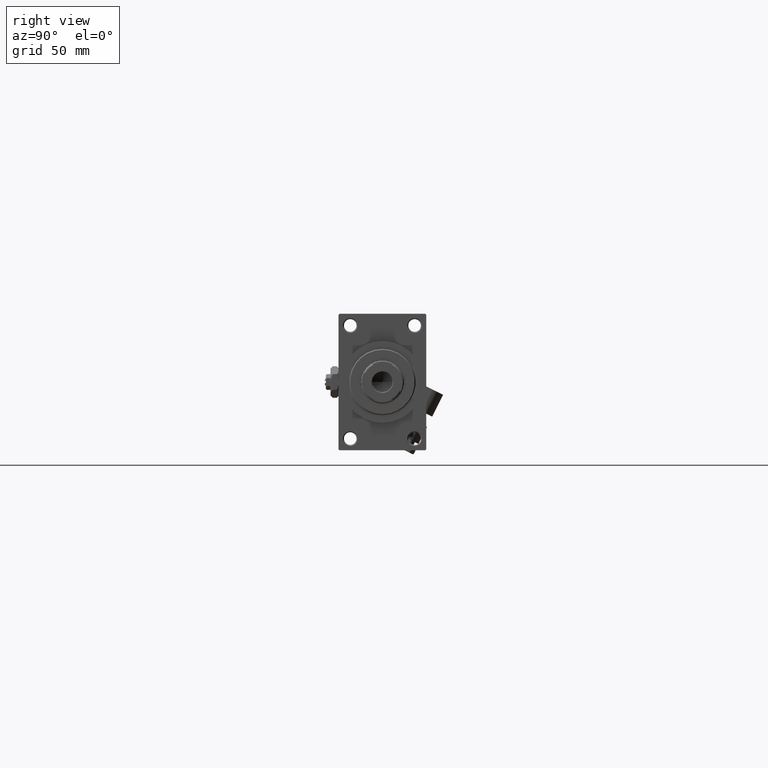
[diagram: clean part render]
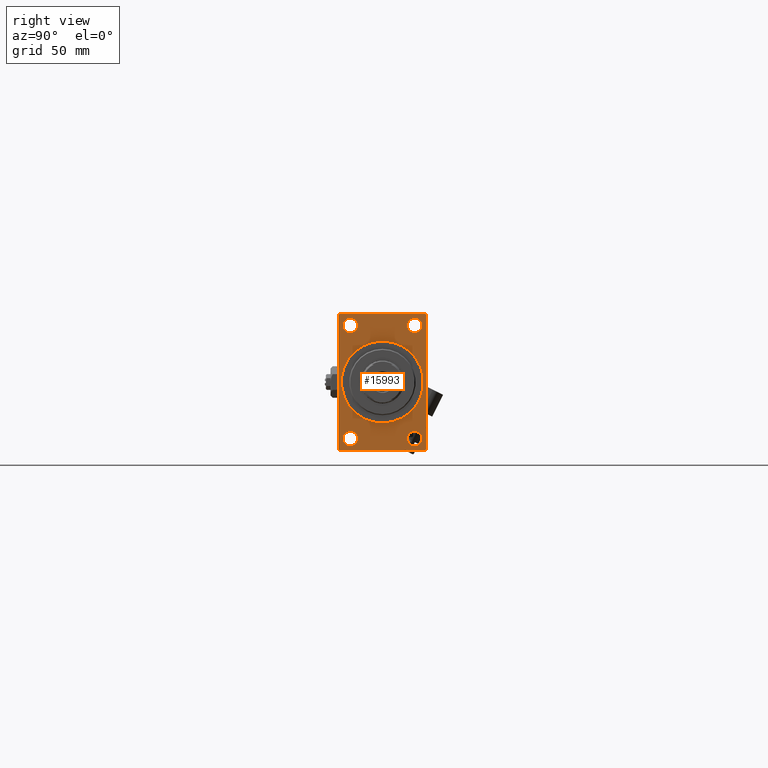
[diagram: same view with one face highlighted and labeled with its STEP entity id]
A machine part, right view. The second image highlights one B-rep face of the part: STEP entity #15993.
In plain terms, the highlighted planar face has unit normal (-1, 0, 0).
Its self-contained STEP definition (entity closure, byte-faithful):
#41 = AXIS2_PLACEMENT_3D ( 'NONE', #14503, #25648, #5653 ) ;
#361 = CARTESIAN_POINT ( 'NONE',  ( 318.0000000000000000, -16.50000000000000000, -25.25000000000001776 ) ) ;
#853 = CARTESIAN_POINT ( 'NONE',  ( 318.0000000000000000, 16.50000000000000000, 25.24999999999994671 ) ) ;
#1430 = CARTESIAN_POINT ( 'NONE',  ( 318.0000000000000000, -22.50000000000000355, 34.50000000000000000 ) ) ;
#1906 = VERTEX_POINT ( 'NONE', #20169 ) ;
#2565 = FACE_BOUND ( 'NONE', #6423, .T. ) ;
#2889 = DIRECTION ( 'NONE',  ( 0.000000000000000000, -1.000000000000000000, 0.000000000000000000 ) ) ;
#3089 = DIRECTION ( 'NONE',  ( -1.000000000000000000, -0.000000000000000000, -0.000000000000000000 ) ) ;
#3107 = AXIS2_PLACEMENT_3D ( 'NONE', #10970, #3089, #44876 ) ;
#3402 = EDGE_CURVE ( 'NONE', #31850, #42200, #6403, .T. ) ;
#3495 = CARTESIAN_POINT ( 'NONE',  ( 318.0000000000000000, 0.000000000000000000, 0.000000000000000000 ) ) ;
#3497 = ORIENTED_EDGE ( 'NONE', *, *, #30233, .F. ) ;
#3504 = CARTESIAN_POINT ( 'NONE',  ( 318.0000000000000000, -16.50000000000000000, -32.74999999999997158 ) ) ;
#3523 = VERTEX_POINT ( 'NONE', #29397 ) ;
#3609 = EDGE_CURVE ( 'NONE', #22597, #42264, #7107, .T. ) ;
#3708 = ORIENTED_EDGE ( 'NONE', *, *, #3402, .T. ) ;
#4029 = DIRECTION ( 'NONE',  ( -1.000000000000000000, -0.000000000000000000, -0.000000000000000000 ) ) ;
#4469 = VERTEX_POINT ( 'NONE', #1430 ) ;
#4523 = ORIENTED_EDGE ( 'NONE', *, *, #25827, .T. ) ;
#4896 = EDGE_CURVE ( 'NONE', #27595, #9261, #43670, .T. ) ;
#5458 = VERTEX_POINT ( 'NONE', #38633 ) ;
#5653 = DIRECTION ( 'NONE',  ( 0.000000000000000000, 0.000000000000000000, 1.000000000000000000 ) ) ;
#5707 = CARTESIAN_POINT ( 'NONE',  ( 318.0000000000000000, 22.00000000000002132, 35.00000000000000000 ) ) ;
#6042 = CARTESIAN_POINT ( 'NONE',  ( 318.0000000000000000, -22.50000000000000355, 34.50000000000000000 ) ) ;
#6403 = CIRCLE ( 'NONE', #20985, 3.750000000000055511 ) ;
#6423 = EDGE_LOOP ( 'NONE', ( #28550, #20867 ) ) ;
#6527 = CARTESIAN_POINT ( 'NONE',  ( 318.0000000000000000, 0.000000000000000000, 0.000000000000000000 ) ) ;
#6619 = PLANE ( 'NONE',  #24573 ) ;
#6992 = DIRECTION ( 'NONE',  ( -0.000000000000000000, 0.7071067811865474617, 0.7071067811865474617 ) ) ;
#7107 = LINE ( 'NONE', #34440, #12131 ) ;
#7348 = VERTEX_POINT ( 'NONE', #35332 ) ;
#7367 = CARTESIAN_POINT ( 'NONE',  ( 318.0000000000000000, -16.50000000000000000, 32.75000000000006395 ) ) ;
#7765 = VECTOR ( 'NONE', #2889, 1000.000000000000000 ) ;
#7939 = DIRECTION ( 'NONE',  ( -1.000000000000000000, -0.000000000000000000, -0.000000000000000000 ) ) ;
#8239 = DIRECTION ( 'NONE',  ( 0.000000000000000000, -1.000000000000000000, 0.000000000000000000 ) ) ;
#8307 = CARTESIAN_POINT ( 'NONE',  ( 318.0000000000000000, -16.50000000000000000, 29.00000000000000711 ) ) ;
#8360 = EDGE_LOOP ( 'NONE', ( #12945, #13839, #15112, #36370, #22484, #46509, #20950, #10319 ) ) ;
#8850 = LINE ( 'NONE', #6042, #15696 ) ;
#8909 = CARTESIAN_POINT ( 'NONE',  ( 318.0000000000000000, -16.50000000000000000, 29.00000000000000711 ) ) ;
#9261 = VERTEX_POINT ( 'NONE', #361 ) ;
#10319 = ORIENTED_EDGE ( 'NONE', *, *, #47777, .T. ) ;
#10738 = VECTOR ( 'NONE', #28408, 1000.000000000000000 ) ;
#10847 = EDGE_LOOP ( 'NONE', ( #3708, #31845 ) ) ;
#10970 = CARTESIAN_POINT ( 'NONE',  ( 318.0000000000000000, -16.50000000000000000, -28.99999999999999289 ) ) ;
#11217 = DIRECTION ( 'NONE',  ( 0.000000000000000000, -0.7071067811865279218, 0.7071067811865671127 ) ) ;
#11410 = VERTEX_POINT ( 'NONE', #39058 ) ;
#11909 = VERTEX_POINT ( 'NONE', #18212 ) ;
#12131 = VECTOR ( 'NONE', #18258, 1000.000000000000000 ) ;
#12295 = DIRECTION ( 'NONE',  ( -1.000000000000000000, -0.000000000000000000, -0.000000000000000000 ) ) ;
#12943 = EDGE_CURVE ( 'NONE', #4469, #11909, #43110, .T. ) ;
#12945 = ORIENTED_EDGE ( 'NONE', *, *, #12943, .T. ) ;
#13839 = ORIENTED_EDGE ( 'NONE', *, *, #29603, .T. ) ;
#14223 = FACE_BOUND ( 'NONE', #14870, .T. ) ;
#14503 = CARTESIAN_POINT ( 'NONE',  ( 318.0000000000000000, 16.50000000000000000, -28.99999999999999289 ) ) ;
#14870 = EDGE_LOOP ( 'NONE', ( #32930, #26512 ) ) ;
#15112 = ORIENTED_EDGE ( 'NONE', *, *, #31697, .F. ) ;
#15643 = DIRECTION ( 'NONE',  ( 1.000000000000000000, 0.000000000000000000, 0.000000000000000000 ) ) ;
#15696 = VECTOR ( 'NONE', #21505, 1000.000000000000114 ) ;
#15888 = DIRECTION ( 'NONE',  ( 0.000000000000000000, 0.000000000000000000, 1.000000000000000000 ) ) ;
#15993 = ADVANCED_FACE ( 'NONE', ( #41812, #2565, #14223, #45351, #41045, #37248 ), #6619, .F. ) ;
#16648 = DIRECTION ( 'NONE',  ( -1.000000000000000000, -0.000000000000000000, -0.000000000000000000 ) ) ;
#17298 = CARTESIAN_POINT ( 'NONE',  ( 318.0000000000000000, -22.00000000000002842, -35.00000000000000000 ) ) ;
#17594 = EDGE_LOOP ( 'NONE', ( #3497, #34151 ) ) ;
#17671 = EDGE_LOOP ( 'NONE', ( #4523, #43255 ) ) ;
#18114 = EDGE_CURVE ( 'NONE', #22597, #20244, #48251, .T. ) ;
#18212 = CARTESIAN_POINT ( 'NONE',  ( 318.0000000000000000, -22.50000000000000355, -34.50000000000000000 ) ) ;
#18258 = DIRECTION ( 'NONE',  ( 0.000000000000000000, 0.000000000000000000, -1.000000000000000000 ) ) ;
#19490 = DIRECTION ( 'NONE',  ( 0.000000000000000000, 0.000000000000000000, 1.000000000000000000 ) ) ;
#20169 = CARTESIAN_POINT ( 'NONE',  ( 318.0000000000000000, 16.50000000000000000, -25.25000000000001776 ) ) ;
#20244 = VERTEX_POINT ( 'NONE', #46100 ) ;
#20867 = ORIENTED_EDGE ( 'NONE', *, *, #29701, .T. ) ;
#20950 = ORIENTED_EDGE ( 'NONE', *, *, #24406, .T. ) ;
#20985 = AXIS2_PLACEMENT_3D ( 'NONE', #8909, #24356, #35738 ) ;
#21086 = CIRCLE ( 'NONE', #25917, 3.750000000000058620 ) ;
#21505 = DIRECTION ( 'NONE',  ( -0.000000000000000000, -0.7071067811865474617, -0.7071067811865474617 ) ) ;
#21600 = AXIS2_PLACEMENT_3D ( 'NONE', #3495, #15643, #34877 ) ;
#21886 = CIRCLE ( 'NONE', #41, 3.749999999999972022 ) ;
#22484 = ORIENTED_EDGE ( 'NONE', *, *, #3609, .F. ) ;
#22597 = VERTEX_POINT ( 'NONE', #37739 ) ;
#22998 = EDGE_CURVE ( 'NONE', #42200, #31850, #26339, .T. ) ;
#23295 = CARTESIAN_POINT ( 'NONE',  ( 318.0000000000000000, 16.50000000000000000, 29.00000000000000355 ) ) ;
#23877 = CARTESIAN_POINT ( 'NONE',  ( 318.0000000000000000, -22.50000000000000355, 35.00000000000000000 ) ) ;
#24356 = DIRECTION ( 'NONE',  ( -1.000000000000000000, -0.000000000000000000, -0.000000000000000000 ) ) ;
#24406 = EDGE_CURVE ( 'NONE', #20244, #5458, #34284, .T. ) ;
#24426 = CARTESIAN_POINT ( 'NONE',  ( 318.0000000000000000, 22.49999999999999645, -35.00000000000000000 ) ) ;
#24573 = AXIS2_PLACEMENT_3D ( 'NONE', #29671, #49935, #26374 ) ;
#24640 = VECTOR ( 'NONE', #11217, 1000.000000000000000 ) ;
#24842 = CIRCLE ( 'NONE', #21600, 21.00000000000000000 ) ;
#24945 = CIRCLE ( 'NONE', #33024, 21.00000000000000000 ) ;
#25648 = DIRECTION ( 'NONE',  ( -1.000000000000000000, -0.000000000000000000, -0.000000000000000000 ) ) ;
#25827 = EDGE_CURVE ( 'NONE', #44407, #28556, #48264, .T. ) ;
#25917 = AXIS2_PLACEMENT_3D ( 'NONE', #31016, #46467, #27962 ) ;
#26339 = CIRCLE ( 'NONE', #45008, 3.750000000000055511 ) ;
#26374 = DIRECTION ( 'NONE',  ( -0.000000000000000000, 0.000000000000000000, 1.000000000000000000 ) ) ;
#26512 = ORIENTED_EDGE ( 'NONE', *, *, #27250, .T. ) ;
#26691 = EDGE_CURVE ( 'NONE', #42788, #43260, #24842, .T. ) ;
#26967 = EDGE_CURVE ( 'NONE', #3523, #42264, #49043, .T. ) ;
#27250 = EDGE_CURVE ( 'NONE', #1906, #11410, #48306, .T. ) ;
#27378 = CIRCLE ( 'NONE', #3107, 3.749999999999972022 ) ;
#27595 = VERTEX_POINT ( 'NONE', #3504 ) ;
#27727 = DIRECTION ( 'NONE',  ( 0.000000000000000000, 0.000000000000000000, 1.000000000000000000 ) ) ;
#27962 = DIRECTION ( 'NONE',  ( 0.000000000000000000, 0.000000000000000000, 1.000000000000000000 ) ) ;
#28408 = DIRECTION ( 'NONE',  ( 0.000000000000000000, 0.000000000000000000, -1.000000000000000000 ) ) ;
#28462 = LINE ( 'NONE', #24426, #30662 ) ;
#28550 = ORIENTED_EDGE ( 'NONE', *, *, #4896, .T. ) ;
#28556 = VERTEX_POINT ( 'NONE', #41938 ) ;
#28887 = VECTOR ( 'NONE', #6992, 1000.000000000000114 ) ;
#28970 = CARTESIAN_POINT ( 'NONE',  ( 318.0000000000000000, -16.50000000000000000, 25.24999999999995381 ) ) ;
#29397 = CARTESIAN_POINT ( 'NONE',  ( 318.0000000000000000, 21.99999999999999645, -35.00000000000000000 ) ) ;
#29603 = EDGE_CURVE ( 'NONE', #11909, #7348, #43391, .T. ) ;
#29671 = CARTESIAN_POINT ( 'NONE',  ( 318.0000000000000000, 0.000000000000000000, 0.000000000000000000 ) ) ;
#29701 = EDGE_CURVE ( 'NONE', #9261, #27595, #27378, .T. ) ;
#29760 = CARTESIAN_POINT ( 'NONE',  ( 318.0000000000000000, 0.000000000000000000, 21.00000000000000000 ) ) ;
#30233 = EDGE_CURVE ( 'NONE', #43260, #42788, #24945, .T. ) ;
#30410 = CARTESIAN_POINT ( 'NONE',  ( 318.0000000000000000, 22.49999999999999645, -34.50000000000000000 ) ) ;
#30662 = VECTOR ( 'NONE', #8239, 1000.000000000000000 ) ;
#30714 = DIRECTION ( 'NONE',  ( 0.000000000000000000, 0.000000000000000000, 1.000000000000000000 ) ) ;
#31016 = CARTESIAN_POINT ( 'NONE',  ( 318.0000000000000000, 16.50000000000000000, 29.00000000000000355 ) ) ;
#31376 = VECTOR ( 'NONE', #39836, 1000.000000000000000 ) ;
#31697 = EDGE_CURVE ( 'NONE', #3523, #7348, #28462, .T. ) ;
#31845 = ORIENTED_EDGE ( 'NONE', *, *, #22998, .T. ) ;
#31850 = VERTEX_POINT ( 'NONE', #28970 ) ;
#32859 = DIRECTION ( 'NONE',  ( 1.000000000000000000, 0.000000000000000000, 0.000000000000000000 ) ) ;
#32930 = ORIENTED_EDGE ( 'NONE', *, *, #40731, .T. ) ;
#33024 = AXIS2_PLACEMENT_3D ( 'NONE', #6527, #32859, #33102 ) ;
#33102 = DIRECTION ( 'NONE',  ( 0.000000000000000000, 0.000000000000000000, -1.000000000000000000 ) ) ;
#34151 = ORIENTED_EDGE ( 'NONE', *, *, #26691, .F. ) ;
#34284 = LINE ( 'NONE', #37572, #7765 ) ;
#34440 = CARTESIAN_POINT ( 'NONE',  ( 318.0000000000000000, 22.49999999999999645, 35.00000000000000000 ) ) ;
#34877 = DIRECTION ( 'NONE',  ( 0.000000000000000000, 0.000000000000000000, -1.000000000000000000 ) ) ;
#35332 = CARTESIAN_POINT ( 'NONE',  ( 318.0000000000000000, -22.00000000000001776, -35.00000000000000000 ) ) ;
#35519 = EDGE_CURVE ( 'NONE', #28556, #44407, #21086, .T. ) ;
#35738 = DIRECTION ( 'NONE',  ( 0.000000000000000000, 0.000000000000000000, 1.000000000000000000 ) ) ;
#36370 = ORIENTED_EDGE ( 'NONE', *, *, #26967, .T. ) ;
#37248 = FACE_OUTER_BOUND ( 'NONE', #8360, .T. ) ;
#37572 = CARTESIAN_POINT ( 'NONE',  ( 318.0000000000000000, 22.49999999999999645, 35.00000000000000000 ) ) ;
#37739 = CARTESIAN_POINT ( 'NONE',  ( 318.0000000000000000, 22.49999999999999645, 34.50000000000000000 ) ) ;
#38633 = CARTESIAN_POINT ( 'NONE',  ( 318.0000000000000000, -21.99999999999998934, 35.00000000000000000 ) ) ;
#39058 = CARTESIAN_POINT ( 'NONE',  ( 318.0000000000000000, 16.50000000000000000, -32.74999999999997158 ) ) ;
#39836 = DIRECTION ( 'NONE',  ( 0.000000000000000000, 0.7071067811865279218, -0.7071067811865671127 ) ) ;
#40159 = AXIS2_PLACEMENT_3D ( 'NONE', #23295, #4029, #19490 ) ;
#40731 = EDGE_CURVE ( 'NONE', #11410, #1906, #21886, .T. ) ;
#41045 = FACE_BOUND ( 'NONE', #17594, .T. ) ;
#41812 = FACE_BOUND ( 'NONE', #10847, .T. ) ;
#41938 = CARTESIAN_POINT ( 'NONE',  ( 318.0000000000000000, 16.50000000000000000, 32.75000000000006395 ) ) ;
#42200 = VERTEX_POINT ( 'NONE', #7367 ) ;
#42264 = VERTEX_POINT ( 'NONE', #30410 ) ;
#42788 = VERTEX_POINT ( 'NONE', #44820 ) ;
#43110 = LINE ( 'NONE', #23877, #10738 ) ;
#43255 = ORIENTED_EDGE ( 'NONE', *, *, #35519, .T. ) ;
#43260 = VERTEX_POINT ( 'NONE', #29760 ) ;
#43391 = LINE ( 'NONE', #17298, #31376 ) ;
#43670 = CIRCLE ( 'NONE', #49374, 3.749999999999972022 ) ;
#44407 = VERTEX_POINT ( 'NONE', #853 ) ;
#44462 = CARTESIAN_POINT ( 'NONE',  ( 318.0000000000000000, 22.49999999999999645, -34.50000000000000000 ) ) ;
#44820 = CARTESIAN_POINT ( 'NONE',  ( 318.0000000000000000, 2.571758278209441661E-15, -21.00000000000000000 ) ) ;
#44876 = DIRECTION ( 'NONE',  ( 0.000000000000000000, 0.000000000000000000, 1.000000000000000000 ) ) ;
#45008 = AXIS2_PLACEMENT_3D ( 'NONE', #8307, #16648, #15888 ) ;
#45044 = AXIS2_PLACEMENT_3D ( 'NONE', #47226, #12295, #27727 ) ;
#45351 = FACE_BOUND ( 'NONE', #17671, .T. ) ;
#46100 = CARTESIAN_POINT ( 'NONE',  ( 318.0000000000000000, 22.00000000000002132, 35.00000000000000000 ) ) ;
#46162 = CARTESIAN_POINT ( 'NONE',  ( 318.0000000000000000, -16.50000000000000000, -28.99999999999999289 ) ) ;
#46467 = DIRECTION ( 'NONE',  ( -1.000000000000000000, -0.000000000000000000, -0.000000000000000000 ) ) ;
#46509 = ORIENTED_EDGE ( 'NONE', *, *, #18114, .T. ) ;
#47226 = CARTESIAN_POINT ( 'NONE',  ( 318.0000000000000000, 16.50000000000000000, -28.99999999999999289 ) ) ;
#47777 = EDGE_CURVE ( 'NONE', #5458, #4469, #8850, .T. ) ;
#48251 = LINE ( 'NONE', #5707, #24640 ) ;
#48264 = CIRCLE ( 'NONE', #40159, 3.750000000000058620 ) ;
#48306 = CIRCLE ( 'NONE', #45044, 3.749999999999972022 ) ;
#49043 = LINE ( 'NONE', #44462, #28887 ) ;
#49374 = AXIS2_PLACEMENT_3D ( 'NONE', #46162, #7939, #30714 ) ;
#49935 = DIRECTION ( 'NONE',  ( -1.000000000000000000, 0.000000000000000000, -0.000000000000000000 ) ) ;